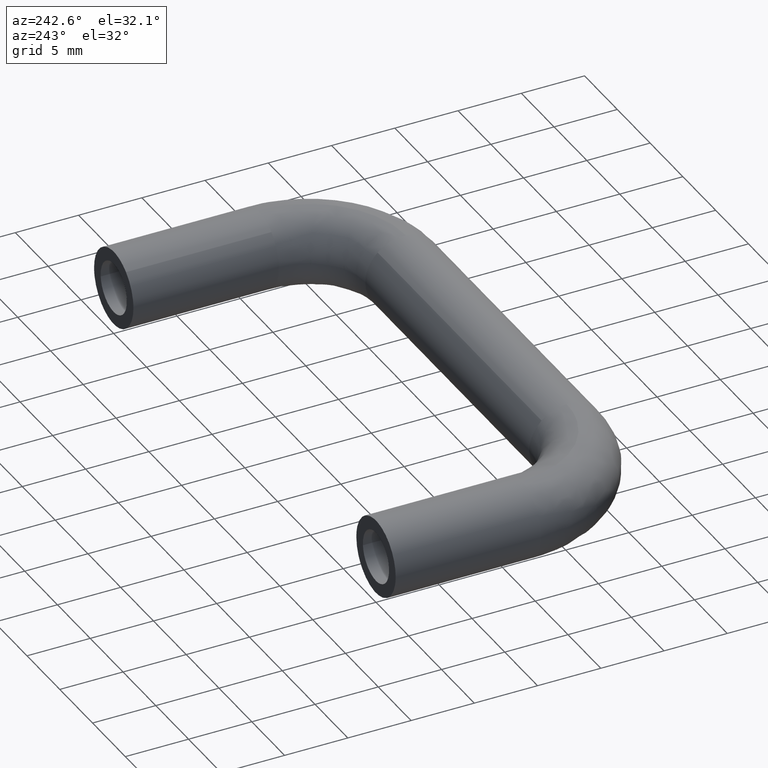
[diagram: clean part render]
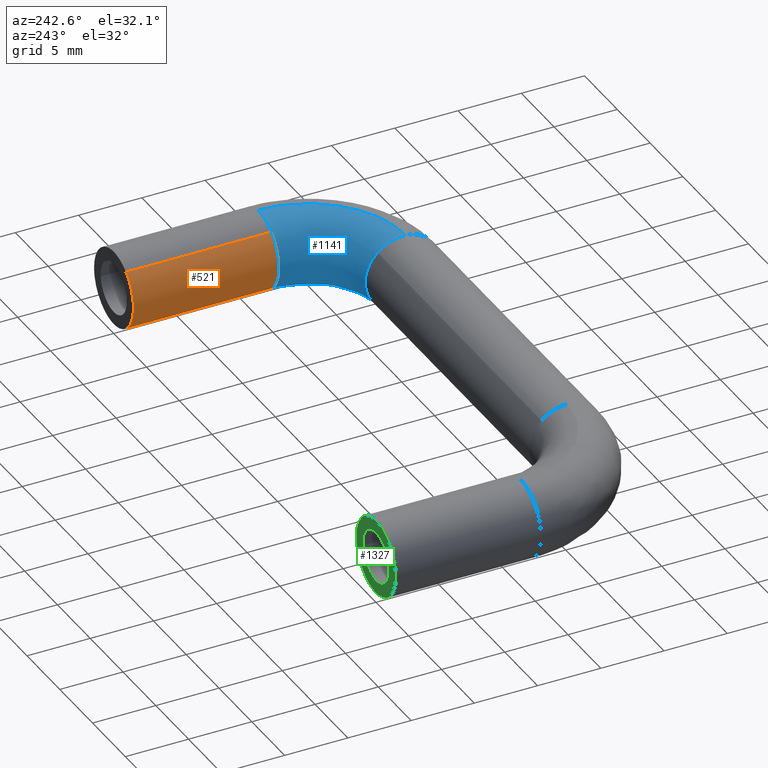
[diagram: same view with three faces highlighted in distinct colors, each labeled with its STEP entity id]
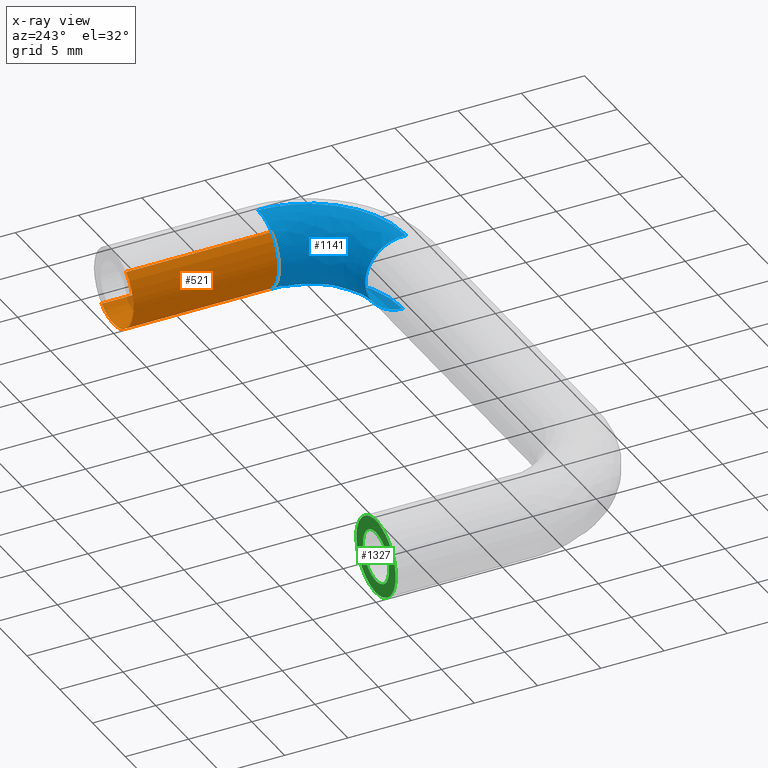
[diagram: x-ray of the same camera — body ghosted, the three highlighted faces saturated]
A machine part, auxiliary view with three faces highlighted in distinct colors.
The next image is the same camera in x-ray (body ghosted, the three faces saturated) — at least one of them is partly hidden behind the body in this view.
Their STEP definitions:

[orange] entity #521 — the highlighted face is a freeform B-spline surface patch.
#408=CARTESIAN_POINT('',(41.867543909912847,-11.787500000253811,-2.347824470557242));
#409=CARTESIAN_POINT('',(39.519719439355612,-11.787500000253816,-4.215368380470099));
#410=CARTESIAN_POINT('',(37.652175529442758,-11.787500000253811,-1.867543909912858));
#411=CARTESIAN_POINT('',(35.784631619529897,-11.787500000253816,0.480280560644384));
#412=CARTESIAN_POINT('',(38.132456090087153,-11.787500000253811,2.347824470557242));
#413=CARTESIAN_POINT('',(41.867543909912847,0.294687500006351,-2.347824470557242));
#414=CARTESIAN_POINT('',(39.519719439355612,0.294687500006351,-4.215368380470099));
#415=CARTESIAN_POINT('',(37.652175529442758,0.294687500006351,-1.867543909912858));
#416=CARTESIAN_POINT('',(35.784631619529897,0.294687500006351,0.480280560644384));
#417=CARTESIAN_POINT('',(38.132456090087153,0.294687500006351,2.347824470557242));
#425=(BOUNDED_SURFACE()B_SPLINE_SURFACE(2,1,((#408,#413),(#409,#414),(#410,#415),(#411,#416),(#412,#417)),.UNSPECIFIED.,.F.,.F.,.U.)B_SPLINE_SURFACE_WITH_KNOTS((3,2,3),(2,2),(0.0,4.970562748477141,9.941125496954282),(0.0,12.082187500260170),.UNSPECIFIED.)GEOMETRIC_REPRESENTATION_ITEM()RATIONAL_B_SPLINE_SURFACE(((1.0,1.0),(0.707106781186548,0.707106781186548),(1.0,1.0),(0.707106781186548,0.707106781186548),(1.0,1.0)))REPRESENTATION_ITEM('')SURFACE());
#426=CARTESIAN_POINT('',(39.962301879997071,-11.500000000179689,-2.999763132607013));
#427=VERTEX_POINT('',#426);
#428=CARTESIAN_POINT('',(41.867541848628008,-11.500000000000011,-2.347826110174283));
#429=VERTEX_POINT('',#428);
#430=CARTESIAN_POINT('',(39.962301879997071,-11.500000000179694,-2.999763132607013));
#431=CARTESIAN_POINT('',(39.981150195671418,-11.500000000000002,-3.000000000000000));
#432=CARTESIAN_POINT('',(40.0,-11.500000000000000,-3.0));
#433=CARTESIAN_POINT('',(41.047645422730959,-11.499999999999995,-3.000000000000000));
#434=CARTESIAN_POINT('',(41.867541848628008,-11.500000000000011,-2.347826110174283));
#442=(BOUNDED_CURVE()B_SPLINE_CURVE(2,(#430,#431,#432,#433,#434),.UNSPECIFIED.,.F.,.U.)B_SPLINE_CURVE_WITH_KNOTS((3,2,3),(0.247784295880353,0.250000000000000,0.357863744491165),.UNSPECIFIED.)CURVE()GEOMETRIC_REPRESENTATION_ITEM()RATIONAL_B_SPLINE_CURVE((0.994854295548782,0.997404141153833,1.0,0.873629762730844,0.856305661334393))REPRESENTATION_ITEM(''));
#443=EDGE_CURVE('',#427,#429,#442,.T.);
#444=ORIENTED_EDGE('',*,*,#443,.F.);
#445=CARTESIAN_POINT('',(37.0,-11.500000000000000,0.0));
#446=VERTEX_POINT('',#445);
#447=CARTESIAN_POINT('',(37.0,-11.500000000000000,0.0));
#448=CARTESIAN_POINT('',(37.000000000000007,-11.500000000000000,-2.962535789024903));
#449=CARTESIAN_POINT('',(39.962301879997078,-11.500000000179693,-2.999763132607013));
#457=(BOUNDED_CURVE()B_SPLINE_CURVE(2,(#447,#448,#449),.UNSPECIFIED.,.F.,.U.)B_SPLINE_CURVE_WITH_KNOTS((3,3),(0.0,0.247784295880353),.UNSPECIFIED.)CURVE()GEOMETRIC_REPRESENTATION_ITEM()RATIONAL_B_SPLINE_CURVE((1.0,0.709702640032715,0.994854295548782))REPRESENTATION_ITEM(''));
#458=EDGE_CURVE('',#446,#427,#457,.T.);
#459=ORIENTED_EDGE('',*,*,#458,.F.);
#460=CARTESIAN_POINT('',(38.132458151371978,-11.500000000000011,2.347826110174281));
#461=VERTEX_POINT('',#460);
#462=CARTESIAN_POINT('',(38.132458151371978,-11.500000000000014,2.347826110174281));
#463=CARTESIAN_POINT('',(37.000000000000007,-11.500000000000002,1.447029845775194));
#464=CARTESIAN_POINT('',(37.0,-11.500000000000000,0.0));
#472=(BOUNDED_CURVE()B_SPLINE_CURVE(2,(#462,#463,#464),.UNSPECIFIED.,.F.,.U.)B_SPLINE_CURVE_WITH_KNOTS((3,3),(0.857863744491166,1.0),.UNSPECIFIED.)CURVE()GEOMETRIC_REPRESENTATION_ITEM()RATIONAL_B_SPLINE_CURVE((0.856305661334392,0.833477018455705,1.0))REPRESENTATION_ITEM(''));
#473=EDGE_CURVE('',#461,#446,#472,.T.);
#474=ORIENTED_EDGE('',*,*,#473,.F.);
#475=CARTESIAN_POINT('',(38.132457165461702,6.376843E-015,2.347825325947980));
#476=VERTEX_POINT('',#475);
#477=CARTESIAN_POINT('',(38.132458151371978,-11.500000000000011,2.347826110174281));
#478=CARTESIAN_POINT('',(38.132457165461702,6.376843E-015,2.347825325947980));
#479=QUASI_UNIFORM_CURVE('',1,(#477,#478),.UNSPECIFIED.,.F.,.U.);
#480=EDGE_CURVE('',#461,#476,#479,.T.);
#481=ORIENTED_EDGE('',*,*,#480,.T.);
#482=CARTESIAN_POINT('',(37.0,5.204170E-015,0.0));
#483=VERTEX_POINT('',#482);
#484=CARTESIAN_POINT('',(38.132457165461709,6.376843E-015,2.347825325947980));
#485=CARTESIAN_POINT('',(36.999999999999993,5.204170E-015,1.447029069342029));
#486=CARTESIAN_POINT('',(37.0,5.204170E-015,0.0));
#494=(BOUNDED_CURVE()B_SPLINE_CURVE(2,(#484,#485,#486),.UNSPECIFIED.,.F.,.U.)B_SPLINE_CURVE_WITH_KNOTS((3,3),(0.857863808057201,1.0),.UNSPECIFIED.)CURVE()GEOMETRIC_REPRESENTATION_ITEM()RATIONAL_B_SPLINE_CURVE((0.856305640915624,0.833477092927948,1.0))REPRESENTATION_ITEM(''));
#495=EDGE_CURVE('',#476,#483,#494,.T.);
#496=ORIENTED_EDGE('',*,*,#495,.T.);
#497=CARTESIAN_POINT('',(41.867542834538298,5.100087E-015,-2.347825325947981));
#498=VERTEX_POINT('',#497);
#499=CARTESIAN_POINT('',(37.0,5.204170E-015,0.0));
#500=CARTESIAN_POINT('',(37.0,5.204170E-015,-3.0));
#501=CARTESIAN_POINT('',(40.0,5.204170E-015,-3.0));
#502=CARTESIAN_POINT('',(41.047646129433389,5.204170E-015,-3.000000000000000));
#503=CARTESIAN_POINT('',(41.867542834538305,5.100087E-015,-2.347825325947981));
#511=(BOUNDED_CURVE()B_SPLINE_CURVE(2,(#499,#500,#501,#502,#503),.UNSPECIFIED.,.F.,.U.)B_SPLINE_CURVE_WITH_KNOTS((3,2,3),(0.0,0.250000000000000,0.357863808057202),.UNSPECIFIED.)CURVE()GEOMETRIC_REPRESENTATION_ITEM()RATIONAL_B_SPLINE_CURVE((1.0,0.707106781186548,1.0,0.873629688258599,0.856305640915624))REPRESENTATION_ITEM(''));
#512=EDGE_CURVE('',#483,#498,#511,.T.);
#513=ORIENTED_EDGE('',*,*,#512,.T.);
#514=CARTESIAN_POINT('',(41.867541848628008,-11.500000000000011,-2.347826110174283));
#515=CARTESIAN_POINT('',(41.867542834538298,5.100087E-015,-2.347825325947981));
#516=QUASI_UNIFORM_CURVE('',1,(#514,#515),.UNSPECIFIED.,.F.,.U.);
#517=EDGE_CURVE('',#429,#498,#516,.T.);
#518=ORIENTED_EDGE('',*,*,#517,.F.);
#519=EDGE_LOOP('',(#444,#459,#474,#481,#496,#513,#518));
#520=FACE_OUTER_BOUND('',#519,.T.);
#521=ADVANCED_FACE('',(#520),#425,.T.);

[blue] entity #1141 — the highlighted face is a freeform B-spline surface patch.
#426=CARTESIAN_POINT('',(39.962301879997071,-11.500000000179689,-2.999763132607013));
#427=VERTEX_POINT('',#426);
#445=CARTESIAN_POINT('',(37.0,-11.500000000000000,0.0));
#446=VERTEX_POINT('',#445);
#447=CARTESIAN_POINT('',(37.0,-11.500000000000000,0.0));
#448=CARTESIAN_POINT('',(37.000000000000007,-11.500000000000000,-2.962535789024903));
#449=CARTESIAN_POINT('',(39.962301879997078,-11.500000000179693,-2.999763132607013));
#457=(BOUNDED_CURVE()B_SPLINE_CURVE(2,(#447,#448,#449),.UNSPECIFIED.,.F.,.U.)B_SPLINE_CURVE_WITH_KNOTS((3,3),(0.0,0.247784295880353),.UNSPECIFIED.)CURVE()GEOMETRIC_REPRESENTATION_ITEM()RATIONAL_B_SPLINE_CURVE((1.0,0.709702640032715,0.994854295548782))REPRESENTATION_ITEM(''));
#458=EDGE_CURVE('',#446,#427,#457,.T.);
#460=CARTESIAN_POINT('',(38.132458151371978,-11.500000000000011,2.347826110174281));
#461=VERTEX_POINT('',#460);
#462=CARTESIAN_POINT('',(38.132458151371978,-11.500000000000014,2.347826110174281));
#463=CARTESIAN_POINT('',(37.000000000000007,-11.500000000000002,1.447029845775194));
#464=CARTESIAN_POINT('',(37.0,-11.500000000000000,0.0));
#472=(BOUNDED_CURVE()B_SPLINE_CURVE(2,(#462,#463,#464),.UNSPECIFIED.,.F.,.U.)B_SPLINE_CURVE_WITH_KNOTS((3,3),(0.857863744491166,1.0),.UNSPECIFIED.)CURVE()GEOMETRIC_REPRESENTATION_ITEM()RATIONAL_B_SPLINE_CURVE((0.856305661334392,0.833477018455705,1.0))REPRESENTATION_ITEM(''));
#473=EDGE_CURVE('',#461,#446,#472,.T.);
#587=CARTESIAN_POINT('',(40.209199755762477,-11.500000000247621,2.992697021448866));
#588=VERTEX_POINT('',#587);
#589=CARTESIAN_POINT('',(40.209199755762484,-11.500000000247628,2.992697021448866));
#590=CARTESIAN_POINT('',(40.104727348664092,-11.500000000000000,3.000000000000000));
#591=CARTESIAN_POINT('',(40.0,-11.500000000000000,3.0));
#592=CARTESIAN_POINT('',(38.952354577269027,-11.500000000000002,3.000000000000000));
#593=CARTESIAN_POINT('',(38.132458151371978,-11.500000000000016,2.347826110174282));
#601=(BOUNDED_CURVE()B_SPLINE_CURVE(2,(#589,#590,#591,#592,#593),.UNSPECIFIED.,.F.,.U.)B_SPLINE_CURVE_WITH_KNOTS((3,2,3),(0.737833686416044,0.750000000000000,0.857863744491165),.UNSPECIFIED.)CURVE()GEOMETRIC_REPRESENTATION_ITEM()RATIONAL_B_SPLINE_CURVE((0.972879876135180,0.985746277013205,1.0,0.873629762730843,0.856305661334393))REPRESENTATION_ITEM(''));
#602=EDGE_CURVE('',#588,#461,#601,.T.);
#732=CARTESIAN_POINT('',(32.500000000000000,-16.973229668249779,2.211832277171336));
#733=VERTEX_POINT('',#732);
#739=CARTESIAN_POINT('',(32.500000000000000,-16.0,0.0));
#740=VERTEX_POINT('',#739);
#741=CARTESIAN_POINT('',(32.500000000000007,-16.973229668249783,2.211832277171336));
#742=CARTESIAN_POINT('',(32.500000000000000,-16.0,1.320032063944246));
#743=CARTESIAN_POINT('',(32.500000000000000,-16.0,0.0));
#751=(BOUNDED_CURVE()B_SPLINE_CURVE(2,(#741,#742,#743),.UNSPECIFIED.,.F.,.U.)B_SPLINE_CURVE_WITH_KNOTS((3,3),(0.868415169348670,1.0),.UNSPECIFIED.)CURVE()GEOMETRIC_REPRESENTATION_ITEM()RATIONAL_B_SPLINE_CURVE((0.853959785742630,0.845838781614036,1.0))REPRESENTATION_ITEM(''));
#752=EDGE_CURVE('',#733,#740,#751,.T.);
#754=CARTESIAN_POINT('',(32.500000000122377,-18.962301880125231,-2.999763132608624));
#755=VERTEX_POINT('',#754);
#756=CARTESIAN_POINT('',(32.500000000000000,-16.0,0.0));
#757=CARTESIAN_POINT('',(32.499999999999993,-16.0,-2.962535789278067));
#758=CARTESIAN_POINT('',(32.500000000122384,-18.962301880125231,-2.999763132608624));
#766=(BOUNDED_CURVE()B_SPLINE_CURVE(2,(#756,#757,#758),.UNSPECIFIED.,.F.,.U.)B_SPLINE_CURVE_WITH_KNOTS((3,3),(0.0,0.247784295895380),.UNSPECIFIED.)CURVE()GEOMETRIC_REPRESENTATION_ITEM()RATIONAL_B_SPLINE_CURVE((1.0,0.709702640015109,0.994854295583369))REPRESENTATION_ITEM(''));
#767=EDGE_CURVE('',#740,#755,#766,.T.);
#801=CARTESIAN_POINT('',(32.500000000429111,-19.209199756378428,2.992697021405809));
#802=VERTEX_POINT('',#801);
#816=CARTESIAN_POINT('',(32.500000000429104,-19.209199756378425,2.992697021405810));
#817=CARTESIAN_POINT('',(32.500000000000000,-19.104727349282285,3.000000000000000));
#818=CARTESIAN_POINT('',(32.500000000000000,-19.0,3.0));
#819=CARTESIAN_POINT('',(32.500000000000000,-17.833364258975948,2.999999999999999));
#820=CARTESIAN_POINT('',(32.500000000000007,-16.973229668249783,2.211832277171336));
#828=(BOUNDED_CURVE()B_SPLINE_CURVE(2,(#816,#817,#818,#819,#820),.UNSPECIFIED.,.F.,.U.)B_SPLINE_CURVE_WITH_KNOTS((3,2,3),(0.737833686345251,0.750000000000000,0.868415169348671),.UNSPECIFIED.)CURVE()GEOMETRIC_REPRESENTATION_ITEM()RATIONAL_B_SPLINE_CURVE((0.972879875985446,0.985746276930266,1.0,0.861267999572511,0.853959785742630))REPRESENTATION_ITEM(''));
#829=EDGE_CURVE('',#802,#733,#828,.T.);
#1078=CARTESIAN_POINT('',(31.963924637137644,-19.190538441294070,2.992697033066902));
#1079=CARTESIAN_POINT('',(40.806949024383101,-19.806948793232397,2.992697033066902));
#1080=CARTESIAN_POINT('',(40.190538426377138,-10.963924423139286,2.992697033066903));
#1081=CARTESIAN_POINT('',(31.969880463155011,-19.105096146965089,2.998684229664389));
#1082=CARTESIAN_POINT('',(40.714658375433721,-19.714658146851111,2.998684229664389));
#1083=CARTESIAN_POINT('',(40.105096132213902,-10.969880251534184,2.998684229664391));
#1084=CARTESIAN_POINT('',(31.975850351557916,-19.019452113619323,2.999763132611447));
#1085=CARTESIAN_POINT('',(40.622149817720043,-19.622149591711576,2.999763132611449));
#1086=CARTESIAN_POINT('',(40.019452099034240,-10.975850142320244,2.999763132611447));
#1087=CARTESIAN_POINT('',(32.184445172736673,-16.026950308715559,3.037461252261504));
#1088=CARTESIAN_POINT('',(37.389793573944836,-16.389793437880535,3.037461252261505));
#1089=CARTESIAN_POINT('',(37.026950299934860,-11.184445046768907,3.037461252261506));
#1090=CARTESIAN_POINT('',(32.187066590555197,-15.989343442404065,0.037698119650058));
#1091=CARTESIAN_POINT('',(37.349172449195116,-16.349172314261139,0.037698119650059));
#1092=CARTESIAN_POINT('',(36.989343433696305,-11.187066465633887,0.037698119650059));
#1093=CARTESIAN_POINT('',(32.189688008373714,-15.951736576092559,-2.962065012961388));
#1094=CARTESIAN_POINT('',(37.308551324445389,-16.308551190641737,-2.962065012961389));
#1095=CARTESIAN_POINT('',(36.951736567457772,-11.189687884498866,-2.962065012961388));
#1096=CARTESIAN_POINT('',(31.981093187194972,-18.944238380996328,-2.999763132611447));
#1097=CARTESIAN_POINT('',(40.540907568220597,-19.540907344472775,-2.999763132611449));
#1098=CARTESIAN_POINT('',(39.944238366557130,-10.981092980050200,-2.999763132611447));
#1106=(BOUNDED_SURFACE()B_SPLINE_SURFACE(2,2,((#1078,#1081,#1084,#1087,#1090,#1093,#1096),(#1079,#1082,#1085,#1088,#1091,#1094,#1097),(#1080,#1083,#1086,#1089,#1092,#1095,#1098)),.UNSPECIFIED.,.F.,.F.,.U.)B_SPLINE_SURFACE_WITH_KNOTS((3,3),(3,2,2,3),(0.0,14.049044252185970),(0.0,0.198822320327165,5.169385068804314,10.139947817281460),.UNSPECIFIED.)GEOMETRIC_REPRESENTATION_ITEM()RATIONAL_B_SPLINE_SURFACE(((0.895729732449210,0.905606490046838,0.916342095240933,0.647951709431553,0.916342095240933,0.647951709431553,0.916342095240933),(0.587800221482116,0.594281596491894,0.601326568744382,0.425202094466791,0.601326568744382,0.425202094466791,0.601326568744382),(0.895729743804760,0.905606501527600,0.916342106857795,0.647951717645915,0.916342106857795,0.647951717645915,0.916342106857795)))REPRESENTATION_ITEM('')SURFACE());
#1107=ORIENTED_EDGE('',*,*,#602,.T.);
#1108=ORIENTED_EDGE('',*,*,#473,.T.);
#1109=ORIENTED_EDGE('',*,*,#458,.T.);
#1110=CARTESIAN_POINT('',(32.500000000122377,-18.962301880125231,-2.999763132608624));
#1111=CARTESIAN_POINT('',(39.962301879990569,-18.962301880105169,-2.999763132611447));
#1112=CARTESIAN_POINT('',(39.962301879997071,-11.500000000179693,-2.999763132607013));
#1120=(BOUNDED_CURVE()B_SPLINE_CURVE(2,(#1110,#1111,#1112),.UNSPECIFIED.,.F.,.U.)B_SPLINE_CURVE_WITH_KNOTS((3,3),(-1.734750791624319,-0.265249208391641),.UNSPECIFIED.)CURVE()GEOMETRIC_REPRESENTATION_ITEM()RATIONAL_B_SPLINE_CURVE((0.889029723564363,0.628638946232211,0.889029723558707))REPRESENTATION_ITEM(''));
#1121=EDGE_CURVE('',#755,#427,#1120,.T.);
#1122=ORIENTED_EDGE('',*,*,#1121,.F.);
#1123=ORIENTED_EDGE('',*,*,#767,.F.);
#1124=ORIENTED_EDGE('',*,*,#752,.F.);
#1125=ORIENTED_EDGE('',*,*,#829,.F.);
#1126=CARTESIAN_POINT('',(32.500000000429111,-19.209199756378425,2.992697021405808));
#1127=CARTESIAN_POINT('',(40.209199754231065,-19.209199753868116,2.992697021521296));
#1128=CARTESIAN_POINT('',(40.209199755762484,-11.500000000247624,2.992697021448865));
#1136=(BOUNDED_CURVE()B_SPLINE_CURVE(2,(#1126,#1127,#1128),.UNSPECIFIED.,.F.,.U.)B_SPLINE_CURVE_WITH_KNOTS((3,3),(-1.734750791542726,-0.265249208408352),.UNSPECIFIED.)CURVE()GEOMETRIC_REPRESENTATION_ITEM()RATIONAL_B_SPLINE_CURVE((0.869031711835188,0.614498216564749,0.869031711852135))REPRESENTATION_ITEM(''));
#1137=EDGE_CURVE('',#802,#588,#1136,.T.);
#1138=ORIENTED_EDGE('',*,*,#1137,.T.);
#1139=EDGE_LOOP('',(#1107,#1108,#1109,#1122,#1123,#1124,#1125,#1138));
#1140=FACE_OUTER_BOUND('',#1139,.T.);
#1141=ADVANCED_FACE('',(#1140),#1106,.T.);

[green] entity #1327 — the highlighted face is a freeform B-spline surface patch.
#261=CARTESIAN_POINT('',(-1.993834667457272,-4.163336E-017,0.156918191569840));
#262=VERTEX_POINT('',#261);
#268=CARTESIAN_POINT('',(0.0,0.0,2.0));
#269=VERTEX_POINT('',#268);
#270=CARTESIAN_POINT('',(0.0,0.0,2.0));
#271=CARTESIAN_POINT('',(-1.848780983104070,0.0,2.0));
#272=CARTESIAN_POINT('',(-1.993834667457272,-4.163336E-017,0.156918191569840));
#280=(BOUNDED_CURVE()B_SPLINE_CURVE(2,(#270,#271,#272),.UNSPECIFIED.,.F.,.U.)B_SPLINE_CURVE_WITH_KNOTS((3,3),(0.0,0.236331300613138),.UNSPECIFIED.)CURVE()GEOMETRIC_REPRESENTATION_ITEM()RATIONAL_B_SPLINE_CURVE((1.0,0.723120658628193,0.969723356130852))REPRESENTATION_ITEM(''));
#281=EDGE_CURVE('',#269,#262,#280,.T.);
#283=CARTESIAN_POINT('',(1.993834667457272,-4.163336E-017,-0.156918191569840));
#284=VERTEX_POINT('',#283);
#285=CARTESIAN_POINT('',(1.993834667457272,-4.163336E-017,-0.156918191569840));
#286=CARTESIAN_POINT('',(2.0,0.0,-0.078580214130019));
#287=CARTESIAN_POINT('',(2.0,0.0,0.0));
#288=CARTESIAN_POINT('',(2.000000000000000,0.0,2.000000000000000));
#289=CARTESIAN_POINT('',(0.0,0.0,2.0));
#297=(BOUNDED_CURVE()B_SPLINE_CURVE(2,(#285,#286,#287,#288,#289),.UNSPECIFIED.,.F.,.U.)B_SPLINE_CURVE_WITH_KNOTS((3,2,3),(0.736331300613138,0.750000000000000,1.0),.UNSPECIFIED.)CURVE()GEOMETRIC_REPRESENTATION_ITEM()RATIONAL_B_SPLINE_CURVE((0.969723356130852,0.983986122558354,1.0,0.707106781186548,1.0))REPRESENTATION_ITEM(''));
#298=EDGE_CURVE('',#284,#269,#297,.T.);
#374=CARTESIAN_POINT('',(0.0,0.0,-2.0));
#375=VERTEX_POINT('',#374);
#376=CARTESIAN_POINT('',(0.0,0.0,-2.0));
#377=CARTESIAN_POINT('',(1.848780983104059,0.0,-1.999999999999999));
#378=CARTESIAN_POINT('',(1.993834667457272,-4.163336E-017,-0.156918191569840));
#386=(BOUNDED_CURVE()B_SPLINE_CURVE(2,(#376,#377,#378),.UNSPECIFIED.,.F.,.U.)B_SPLINE_CURVE_WITH_KNOTS((3,3),(0.500000000000000,0.736331300613137),.UNSPECIFIED.)CURVE()GEOMETRIC_REPRESENTATION_ITEM()RATIONAL_B_SPLINE_CURVE((1.0,0.723120658628194,0.969723356130850))REPRESENTATION_ITEM(''));
#387=EDGE_CURVE('',#375,#284,#386,.T.);
#389=CARTESIAN_POINT('',(-1.993834667457272,-4.163336E-017,0.156918191569840));
#390=CARTESIAN_POINT('',(-2.0,0.0,0.078580214130019));
#391=CARTESIAN_POINT('',(-2.0,0.0,0.0));
#392=CARTESIAN_POINT('',(-2.000000000000000,0.0,-2.000000000000000));
#393=CARTESIAN_POINT('',(0.0,0.0,-2.0));
#401=(BOUNDED_CURVE()B_SPLINE_CURVE(2,(#389,#390,#391,#392,#393),.UNSPECIFIED.,.F.,.U.)B_SPLINE_CURVE_WITH_KNOTS((3,2,3),(0.236331300613138,0.250000000000000,0.500000000000000),.UNSPECIFIED.)CURVE()GEOMETRIC_REPRESENTATION_ITEM()RATIONAL_B_SPLINE_CURVE((0.969723356130852,0.983986122558354,1.0,0.707106781186548,1.0))REPRESENTATION_ITEM(''));
#402=EDGE_CURVE('',#262,#375,#401,.T.);
#905=CARTESIAN_POINT('',(2.102727683806054,5.551115E-017,2.139751454668415));
#906=VERTEX_POINT('',#905);
#912=CARTESIAN_POINT('',(-3.0,0.0,0.0));
#913=VERTEX_POINT('',#912);
#914=CARTESIAN_POINT('',(-3.0,0.0,0.0));
#915=CARTESIAN_POINT('',(-3.0,0.0,3.0));
#916=CARTESIAN_POINT('',(0.0,0.0,3.0));
#917=CARTESIAN_POINT('',(1.227332225730623,0.0,3.000000000000000));
#918=CARTESIAN_POINT('',(2.102727683806054,5.551115E-017,2.139751454668415));
#926=(BOUNDED_CURVE()B_SPLINE_CURVE(2,(#914,#915,#916,#917,#918),.UNSPECIFIED.,.F.,.U.)B_SPLINE_CURVE_WITH_KNOTS((3,2,3),(0.500000000000000,0.750000000000000,0.873683227022774),.UNSPECIFIED.)CURVE()GEOMETRIC_REPRESENTATION_ITEM()RATIONAL_B_SPLINE_CURVE((1.0,0.707106781186548,1.0,0.855096086096259,0.853569641631277))REPRESENTATION_ITEM(''));
#927=EDGE_CURVE('',#913,#906,#926,.T.);
#929=CARTESIAN_POINT('',(2.139751363995278,5.551115E-017,-2.102727776075720));
#930=VERTEX_POINT('',#929);
#931=CARTESIAN_POINT('',(2.139751363995277,5.551115E-017,-2.102727776075720));
#932=CARTESIAN_POINT('',(1.258004433010387,0.0,-3.000000000000000));
#933=CARTESIAN_POINT('',(0.0,0.0,-3.0));
#934=CARTESIAN_POINT('',(-3.0,0.0,-3.0));
#935=CARTESIAN_POINT('',(-3.0,0.0,0.0));
#943=(BOUNDED_CURVE()B_SPLINE_CURVE(2,(#931,#932,#933,#934,#935),.UNSPECIFIED.,.F.,.U.)B_SPLINE_CURVE_WITH_KNOTS((3,2,3),(0.123683240036139,0.250000000000000,0.500000000000000),.UNSPECIFIED.)CURVE()GEOMETRIC_REPRESENTATION_ITEM()RATIONAL_B_SPLINE_CURVE((0.853569641310068,0.852010710336394,1.0,0.707106781186548,1.0))REPRESENTATION_ITEM(''));
#944=EDGE_CURVE('',#930,#913,#943,.T.);
#1046=CARTESIAN_POINT('',(3.0,0.0,0.0));
#1047=VERTEX_POINT('',#1046);
#1048=CARTESIAN_POINT('',(3.0,0.0,0.0));
#1049=CARTESIAN_POINT('',(3.000000000000001,0.0,-1.227332376747692));
#1050=CARTESIAN_POINT('',(2.139751363995277,5.551115E-017,-2.102727776075721));
#1058=(BOUNDED_CURVE()B_SPLINE_CURVE(2,(#1048,#1049,#1050),.UNSPECIFIED.,.F.,.U.)B_SPLINE_CURVE_WITH_KNOTS((3,3),(0.0,0.123683240036139),.UNSPECIFIED.)CURVE()GEOMETRIC_REPRESENTATION_ITEM()RATIONAL_B_SPLINE_CURVE((1.0,0.855096070850153,0.853569641310068))REPRESENTATION_ITEM(''));
#1059=EDGE_CURVE('',#1047,#930,#1058,.T.);
#1061=CARTESIAN_POINT('',(2.102727683806054,5.551115E-017,2.139751454668415));
#1062=CARTESIAN_POINT('',(3.000000000000001,0.0,1.258004585123176));
#1063=CARTESIAN_POINT('',(3.0,0.0,0.0));
#1071=(BOUNDED_CURVE()B_SPLINE_CURVE(2,(#1061,#1062,#1063),.UNSPECIFIED.,.F.,.U.)B_SPLINE_CURVE_WITH_KNOTS((3,3),(0.873683227022775,1.0),.UNSPECIFIED.)CURVE()GEOMETRIC_REPRESENTATION_ITEM()RATIONAL_B_SPLINE_CURVE((0.853569641631277,0.852010695090290,1.0))REPRESENTATION_ITEM(''));
#1072=EDGE_CURVE('',#906,#1047,#1071,.T.);
#1310=CARTESIAN_POINT('',(-3.299699988370835,0.0,-3.299644401965403));
#1311=CARTESIAN_POINT('',(3.299700149303376,0.0,-3.299644401965403));
#1312=CARTESIAN_POINT('',(-3.299699988370835,0.0,3.299644455609584));
#1313=CARTESIAN_POINT('',(3.299700149303376,0.0,3.299644455609584));
#1314=B_SPLINE_SURFACE_WITH_KNOTS('',1,1,((#1310,#1312),(#1311,#1313)),.UNSPECIFIED.,.F.,.F.,.U.,(2,2),(2,2),(0.0,6.599400137674212),(0.0,6.599288857574987),.UNSPECIFIED.);
#1315=ORIENTED_EDGE('',*,*,#1059,.T.);
#1316=ORIENTED_EDGE('',*,*,#944,.T.);
#1317=ORIENTED_EDGE('',*,*,#927,.T.);
#1318=ORIENTED_EDGE('',*,*,#1072,.T.);
#1319=EDGE_LOOP('',(#1315,#1316,#1317,#1318));
#1320=FACE_OUTER_BOUND('',#1319,.T.);
#1321=ORIENTED_EDGE('',*,*,#387,.T.);
#1322=ORIENTED_EDGE('',*,*,#298,.T.);
#1323=ORIENTED_EDGE('',*,*,#281,.T.);
#1324=ORIENTED_EDGE('',*,*,#402,.T.);
#1325=EDGE_LOOP('',(#1321,#1322,#1323,#1324));
#1326=FACE_BOUND('',#1325,.T.);
#1327=ADVANCED_FACE('',(#1320,#1326),#1314,.F.);